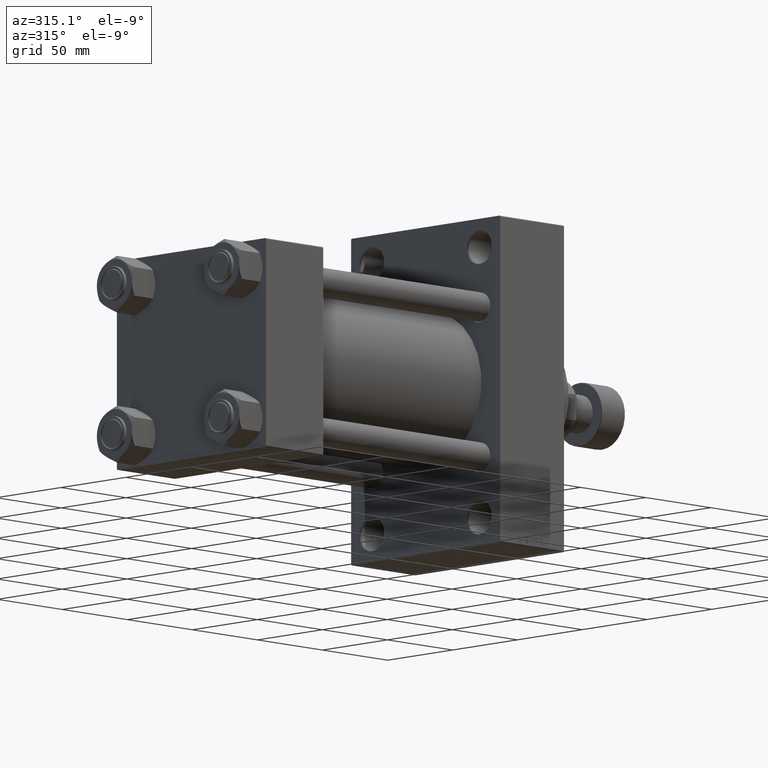
[diagram: clean part render]
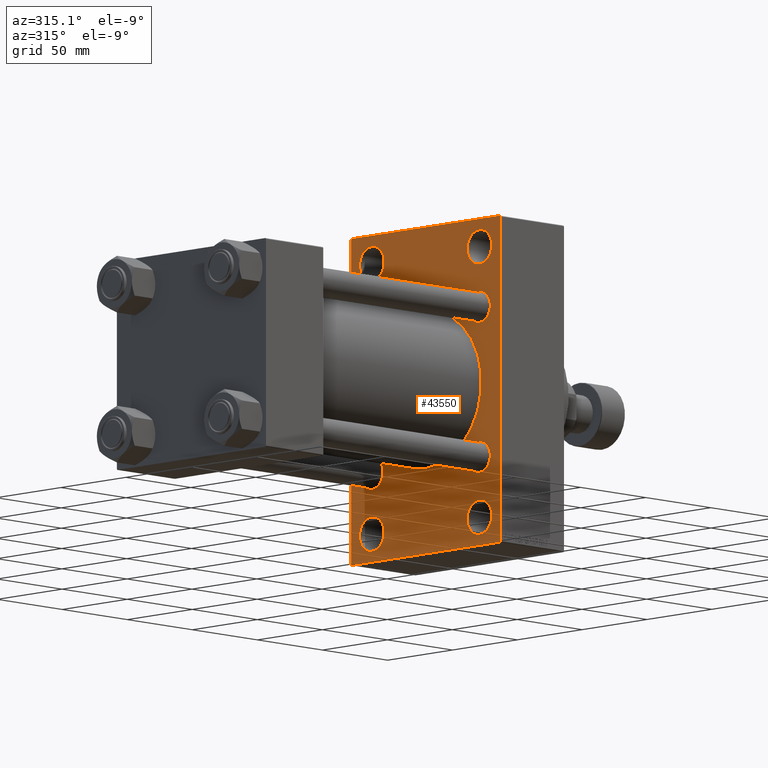
[diagram: same view with one face highlighted and labeled with its STEP entity id]
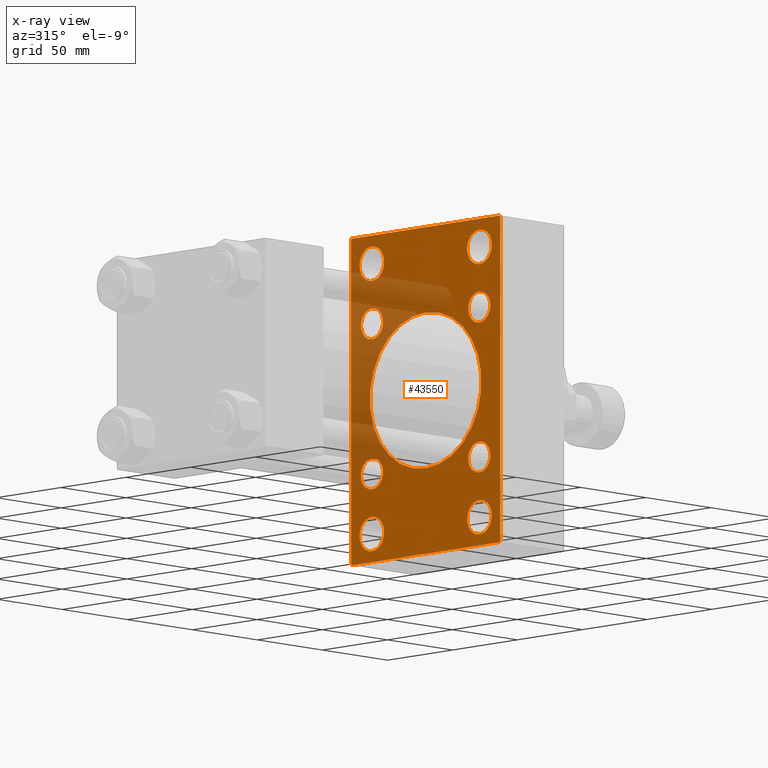
[diagram: x-ray of the same camera — body ghosted, the highlighted face saturated]
A machine part, auxiliary view. The second image highlights one B-rep face of the part: STEP entity #43550.
The next image is the same camera in x-ray: the body ghosted, the highlighted face saturated — about 23% of this face is hidden behind the body in this view.
In plain terms, the highlighted planar face has unit normal (-1, 0, 0).
Its self-contained STEP definition (entity closure, byte-faithful):
#210 = FACE_BOUND ( 'NONE', #36830, .T. ) ;
#462 = DIRECTION ( 'NONE',  ( 1.000000000000000000, 0.000000000000000000, 0.000000000000000000 ) ) ;
#544 = LINE ( 'NONE', #26087, #10243 ) ;
#847 = AXIS2_PLACEMENT_3D ( 'NONE', #46586, #20278, #5933 ) ;
#1003 = CARTESIAN_POINT ( 'NONE',  ( 180.0000000000000000, 41.49999999999999289, -74.49999999999998579 ) ) ;
#1065 = EDGE_CURVE ( 'NONE', #46944, #11020, #24161, .T. ) ;
#1472 = CARTESIAN_POINT ( 'NONE',  ( 180.0000000000000000, -41.34999999999998721, -41.35000000000000142 ) ) ;
#1748 = CARTESIAN_POINT ( 'NONE',  ( 180.0000000000000000, 57.50000000000000000, -90.00000000000000000 ) ) ;
#2166 = CARTESIAN_POINT ( 'NONE',  ( 180.0000000000000000, -41.50000000000000711, 74.50000000000001421 ) ) ;
#2320 = ORIENTED_EDGE ( 'NONE', *, *, #36162, .T. ) ;
#2423 = AXIS2_PLACEMENT_3D ( 'NONE', #17954, #36689, #7452 ) ;
#2856 = VERTEX_POINT ( 'NONE', #25975 ) ;
#3012 = CARTESIAN_POINT ( 'NONE',  ( 180.0000000000000000, -73.50000000000002842, -73.50000000000002842 ) ) ;
#3028 = LINE ( 'NONE', #36116, #8144 ) ;
#3331 = AXIS2_PLACEMENT_3D ( 'NONE', #33059, #14798, #44732 ) ;
#3633 = CARTESIAN_POINT ( 'NONE',  ( 180.0000000000000000, -57.50000000000000000, 90.00000000000000000 ) ) ;
#3788 = CARTESIAN_POINT ( 'NONE',  ( 180.0000000000000000, -57.50000000000000000, -89.49999999999997158 ) ) ;
#3947 = DIRECTION ( 'NONE',  ( 0.000000000000000000, 0.000000000000000000, -1.000000000000000000 ) ) ;
#4126 = CIRCLE ( 'NONE', #30517, 8.500000000000007105 ) ;
#4635 = AXIS2_PLACEMENT_3D ( 'NONE', #27214, #42076, #5085 ) ;
#4665 = CIRCLE ( 'NONE', #5425, 9.500000000000035527 ) ;
#4855 = EDGE_CURVE ( 'NONE', #9399, #16324, #35616, .T. ) ;
#4874 = AXIS2_PLACEMENT_3D ( 'NONE', #35699, #32059, #16722 ) ;
#4976 = CARTESIAN_POINT ( 'NONE',  ( 180.0000000000000000, -2.602085213965210642E-15, 0.000000000000000000 ) ) ;
#4996 = VERTEX_POINT ( 'NONE', #19261 ) ;
#5085 = DIRECTION ( 'NONE',  ( 0.000000000000000000, 0.000000000000000000, -1.000000000000000000 ) ) ;
#5123 = EDGE_CURVE ( 'NONE', #32301, #14495, #19933, .T. ) ;
#5135 = CARTESIAN_POINT ( 'NONE',  ( 180.0000000000000000, -57.00000000000000000, 90.00000000000000000 ) ) ;
#5237 = VECTOR ( 'NONE', #18458, 1000.000000000000000 ) ;
#5303 = CARTESIAN_POINT ( 'NONE',  ( 180.0000000000000000, -41.50000000000000711, -83.99999999999992895 ) ) ;
#5419 = ORIENTED_EDGE ( 'NONE', *, *, #43675, .T. ) ;
#5425 = AXIS2_PLACEMENT_3D ( 'NONE', #26958, #462, #37441 ) ;
#5492 = LINE ( 'NONE', #19845, #9828 ) ;
#5658 = DIRECTION ( 'NONE',  ( 1.000000000000000000, 0.000000000000000000, 0.000000000000000000 ) ) ;
#5894 = EDGE_CURVE ( 'NONE', #29353, #31752, #43844, .T. ) ;
#5933 = DIRECTION ( 'NONE',  ( 0.000000000000000000, 0.000000000000000000, 1.000000000000000000 ) ) ;
#6184 = EDGE_CURVE ( 'NONE', #32132, #16486, #5492, .T. ) ;
#6440 = VERTEX_POINT ( 'NONE', #42287 ) ;
#6565 = EDGE_CURVE ( 'NONE', #37768, #21373, #6750, .T. ) ;
#6750 = CIRCLE ( 'NONE', #9860, 9.499999999999953815 ) ;
#6793 = FACE_BOUND ( 'NONE', #39603, .T. ) ;
#7452 = DIRECTION ( 'NONE',  ( 0.000000000000000000, 0.000000000000000000, 1.000000000000000000 ) ) ;
#7777 = ORIENTED_EDGE ( 'NONE', *, *, #33349, .T. ) ;
#7958 = DIRECTION ( 'NONE',  ( 0.000000000000000000, 0.000000000000000000, 1.000000000000000000 ) ) ;
#8144 = VECTOR ( 'NONE', #43678, 1000.000000000000114 ) ;
#8358 = VERTEX_POINT ( 'NONE', #28926 ) ;
#8463 = EDGE_LOOP ( 'NONE', ( #24609, #5419 ) ) ;
#9035 = VERTEX_POINT ( 'NONE', #19714 ) ;
#9399 = VERTEX_POINT ( 'NONE', #46624 ) ;
#9561 = CARTESIAN_POINT ( 'NONE',  ( 180.0000000000000000, -2.602085213965210642E-15, 43.00000000000000000 ) ) ;
#9828 = VECTOR ( 'NONE', #16681, 1000.000000000000114 ) ;
#9840 = EDGE_CURVE ( 'NONE', #14495, #32301, #16847, .T. ) ;
#9860 = AXIS2_PLACEMENT_3D ( 'NONE', #21115, #14286, #29142 ) ;
#10067 = CIRCLE ( 'NONE', #29479, 9.499999999999953815 ) ;
#10195 = CIRCLE ( 'NONE', #15600, 43.00000000000000000 ) ;
#10243 = VECTOR ( 'NONE', #3947, 1000.000000000000000 ) ;
#11020 = VERTEX_POINT ( 'NONE', #24534 ) ;
#11385 = EDGE_LOOP ( 'NONE', ( #38507, #25403, #30311, #14804, #34965, #25045, #40318, #23877 ) ) ;
#11574 = CARTESIAN_POINT ( 'NONE',  ( 180.0000000000000000, 41.49999999999999289, 84.00000000000004263 ) ) ;
#11778 = AXIS2_PLACEMENT_3D ( 'NONE', #45809, #5658, #13195 ) ;
#11858 = CARTESIAN_POINT ( 'NONE',  ( 180.0000000000000000, -41.50000000000000711, -74.49999999999998579 ) ) ;
#11868 = EDGE_CURVE ( 'NONE', #46740, #23664, #24689, .T. ) ;
#12036 = EDGE_CURVE ( 'NONE', #29353, #16324, #36954, .T. ) ;
#12362 = EDGE_CURVE ( 'NONE', #35775, #31752, #19838, .T. ) ;
#12441 = CARTESIAN_POINT ( 'NONE',  ( 180.0000000000000000, -41.34999999999998721, -32.84999999999999432 ) ) ;
#12657 = DIRECTION ( 'NONE',  ( 1.000000000000000000, 0.000000000000000000, 0.000000000000000000 ) ) ;
#12778 = DIRECTION ( 'NONE',  ( 0.000000000000000000, -1.000000000000000000, 0.000000000000000000 ) ) ;
#13128 = CARTESIAN_POINT ( 'NONE',  ( 180.0000000000000000, -41.50000000000000711, 84.00000000000004263 ) ) ;
#13195 = DIRECTION ( 'NONE',  ( 0.000000000000000000, 0.000000000000000000, 1.000000000000000000 ) ) ;
#13672 = CARTESIAN_POINT ( 'NONE',  ( 180.0000000000000000, -73.50000000000000000, 73.50000000000000000 ) ) ;
#13958 = AXIS2_PLACEMENT_3D ( 'NONE', #29160, #35985, #44009 ) ;
#14043 = CARTESIAN_POINT ( 'NONE',  ( 180.0000000000000000, 41.34999999999999432, -49.85000000000000853 ) ) ;
#14286 = DIRECTION ( 'NONE',  ( 1.000000000000000000, 0.000000000000000000, 0.000000000000000000 ) ) ;
#14495 = VERTEX_POINT ( 'NONE', #12441 ) ;
#14798 = DIRECTION ( 'NONE',  ( -1.000000000000000000, 0.000000000000000000, -0.000000000000000000 ) ) ;
#14804 = ORIENTED_EDGE ( 'NONE', *, *, #5894, .T. ) ;
#15036 = FACE_BOUND ( 'NONE', #21188, .T. ) ;
#15091 = EDGE_LOOP ( 'NONE', ( #44035, #2320 ) ) ;
#15251 = VERTEX_POINT ( 'NONE', #27406 ) ;
#15496 = CARTESIAN_POINT ( 'NONE',  ( 180.0000000000000000, 57.00000000000002842, 90.00000000000000000 ) ) ;
#15508 = ORIENTED_EDGE ( 'NONE', *, *, #6565, .T. ) ;
#15600 = AXIS2_PLACEMENT_3D ( 'NONE', #4976, #45623, #19093 ) ;
#15740 = CARTESIAN_POINT ( 'NONE',  ( 180.0000000000000000, -57.50000000000000000, 89.50000000000000000 ) ) ;
#15804 = ORIENTED_EDGE ( 'NONE', *, *, #40663, .T. ) ;
#15995 = EDGE_CURVE ( 'NONE', #21373, #37768, #10067, .T. ) ;
#16300 = DIRECTION ( 'NONE',  ( 0.000000000000000000, 0.000000000000000000, 1.000000000000000000 ) ) ;
#16324 = VERTEX_POINT ( 'NONE', #3788 ) ;
#16486 = VERTEX_POINT ( 'NONE', #39299 ) ;
#16583 = DIRECTION ( 'NONE',  ( 0.000000000000000000, -1.000000000000000000, 0.000000000000000000 ) ) ;
#16671 = CARTESIAN_POINT ( 'NONE',  ( 180.0000000000000000, -41.50000000000000711, 64.99999999999997158 ) ) ;
#16681 = DIRECTION ( 'NONE',  ( -0.000000000000000000, -0.7071067811865474617, -0.7071067811865474617 ) ) ;
#16722 = DIRECTION ( 'NONE',  ( 0.000000000000000000, 0.000000000000000000, 1.000000000000000000 ) ) ;
#16847 = CIRCLE ( 'NONE', #29282, 8.500000000000007105 ) ;
#16900 = ORIENTED_EDGE ( 'NONE', *, *, #33196, .T. ) ;
#17064 = DIRECTION ( 'NONE',  ( 1.000000000000000000, 0.000000000000000000, 0.000000000000000000 ) ) ;
#17836 = DIRECTION ( 'NONE',  ( 0.000000000000000000, -0.7071067811865474617, 0.7071067811865474617 ) ) ;
#17954 = CARTESIAN_POINT ( 'NONE',  ( 180.0000000000000000, 41.49999999999999289, -74.49999999999998579 ) ) ;
#18073 = ORIENTED_EDGE ( 'NONE', *, *, #28035, .T. ) ;
#18451 = FACE_BOUND ( 'NONE', #38020, .T. ) ;
#18458 = DIRECTION ( 'NONE',  ( 0.000000000000000000, 0.000000000000000000, -1.000000000000000000 ) ) ;
#18685 = FACE_BOUND ( 'NONE', #23828, .T. ) ;
#18717 = CARTESIAN_POINT ( 'NONE',  ( 180.0000000000000000, 57.50000000000000000, -89.49999999999994316 ) ) ;
#19093 = DIRECTION ( 'NONE',  ( 0.000000000000000000, 0.000000000000000000, -1.000000000000000000 ) ) ;
#19261 = CARTESIAN_POINT ( 'NONE',  ( 180.0000000000000000, -41.34999999999998721, 49.85000000000001563 ) ) ;
#19381 = CIRCLE ( 'NONE', #4635, 43.00000000000000000 ) ;
#19529 = ORIENTED_EDGE ( 'NONE', *, *, #39367, .T. ) ;
#19714 = CARTESIAN_POINT ( 'NONE',  ( 180.0000000000000000, 41.49999999999999289, -65.00000000000002842 ) ) ;
#19838 = LINE ( 'NONE', #27126, #20805 ) ;
#19845 = CARTESIAN_POINT ( 'NONE',  ( 180.0000000000000000, 73.50000000000000000, -73.50000000000000000 ) ) ;
#19933 = CIRCLE ( 'NONE', #21481, 8.500000000000007105 ) ;
#20278 = DIRECTION ( 'NONE',  ( 1.000000000000000000, 0.000000000000000000, 0.000000000000000000 ) ) ;
#20317 = VERTEX_POINT ( 'NONE', #11574 ) ;
#20805 = VECTOR ( 'NONE', #12778, 1000.000000000000000 ) ;
#20890 = DIRECTION ( 'NONE',  ( 1.000000000000000000, 0.000000000000000000, 0.000000000000000000 ) ) ;
#21007 = CARTESIAN_POINT ( 'NONE',  ( 180.0000000000000000, 41.34999999999999432, -41.34999999999999432 ) ) ;
#21115 = CARTESIAN_POINT ( 'NONE',  ( 180.0000000000000000, -41.50000000000000711, -74.49999999999998579 ) ) ;
#21181 = DIRECTION ( 'NONE',  ( 1.000000000000000000, 0.000000000000000000, 0.000000000000000000 ) ) ;
#21188 = EDGE_LOOP ( 'NONE', ( #28307, #45794 ) ) ;
#21373 = VERTEX_POINT ( 'NONE', #44226 ) ;
#21481 = AXIS2_PLACEMENT_3D ( 'NONE', #47502, #17064, #47026 ) ;
#21878 = PLANE ( 'NONE',  #3331 ) ;
#22693 = ORIENTED_EDGE ( 'NONE', *, *, #15995, .T. ) ;
#23373 = CIRCLE ( 'NONE', #2423, 9.499999999999953815 ) ;
#23664 = VERTEX_POINT ( 'NONE', #41466 ) ;
#23774 = VERTEX_POINT ( 'NONE', #9561 ) ;
#23828 = EDGE_LOOP ( 'NONE', ( #31233, #33239 ) ) ;
#23877 = ORIENTED_EDGE ( 'NONE', *, *, #6184, .T. ) ;
#24161 = CIRCLE ( 'NONE', #35854, 8.500000000000007105 ) ;
#24304 = AXIS2_PLACEMENT_3D ( 'NONE', #1003, #34804, #37975 ) ;
#24339 = DIRECTION ( 'NONE',  ( 0.000000000000000000, 0.000000000000000000, 1.000000000000000000 ) ) ;
#24534 = CARTESIAN_POINT ( 'NONE',  ( 180.0000000000000000, 41.34999999999999432, -32.84999999999998721 ) ) ;
#24609 = ORIENTED_EDGE ( 'NONE', *, *, #37630, .T. ) ;
#24689 = CIRCLE ( 'NONE', #40237, 8.500000000000007105 ) ;
#24850 = EDGE_CURVE ( 'NONE', #35955, #32132, #544, .T. ) ;
#25045 = ORIENTED_EDGE ( 'NONE', *, *, #29839, .T. ) ;
#25403 = ORIENTED_EDGE ( 'NONE', *, *, #4855, .T. ) ;
#25518 = FACE_BOUND ( 'NONE', #8463, .T. ) ;
#25814 = CARTESIAN_POINT ( 'NONE',  ( 180.0000000000000000, 41.34999999999999432, 49.85000000000000853 ) ) ;
#25975 = CARTESIAN_POINT ( 'NONE',  ( 180.0000000000000000, 41.49999999999999289, 64.99999999999997158 ) ) ;
#26087 = CARTESIAN_POINT ( 'NONE',  ( 180.0000000000000000, 57.50000000000000000, 90.00000000000000000 ) ) ;
#26226 = FACE_BOUND ( 'NONE', #27266, .T. ) ;
#26911 = VECTOR ( 'NONE', #47512, 1000.000000000000114 ) ;
#26958 = CARTESIAN_POINT ( 'NONE',  ( 180.0000000000000000, 41.49999999999999289, 74.50000000000001421 ) ) ;
#27126 = CARTESIAN_POINT ( 'NONE',  ( 180.0000000000000000, 57.50000000000000000, 90.00000000000000000 ) ) ;
#27214 = CARTESIAN_POINT ( 'NONE',  ( 180.0000000000000000, -2.602085213965210642E-15, 0.000000000000000000 ) ) ;
#27264 = CIRCLE ( 'NONE', #847, 9.500000000000035527 ) ;
#27266 = EDGE_LOOP ( 'NONE', ( #7777, #42934 ) ) ;
#27297 = AXIS2_PLACEMENT_3D ( 'NONE', #39421, #36476, #40137 ) ;
#27382 = VERTEX_POINT ( 'NONE', #16671 ) ;
#27406 = CARTESIAN_POINT ( 'NONE',  ( 180.0000000000000000, 41.49999999999999289, -83.99999999999992895 ) ) ;
#27526 = LINE ( 'NONE', #1748, #36533 ) ;
#28022 = EDGE_CURVE ( 'NONE', #15251, #9035, #46098, .T. ) ;
#28035 = EDGE_CURVE ( 'NONE', #6440, #4996, #4126, .T. ) ;
#28307 = ORIENTED_EDGE ( 'NONE', *, *, #11868, .T. ) ;
#28926 = CARTESIAN_POINT ( 'NONE',  ( 180.0000000000000000, 2.663896022368408223E-15, -43.00000000000000000 ) ) ;
#29142 = DIRECTION ( 'NONE',  ( 0.000000000000000000, 0.000000000000000000, 1.000000000000000000 ) ) ;
#29160 = CARTESIAN_POINT ( 'NONE',  ( 180.0000000000000000, 41.34999999999999432, -41.34999999999999432 ) ) ;
#29282 = AXIS2_PLACEMENT_3D ( 'NONE', #1472, #12657, #16300 ) ;
#29353 = VERTEX_POINT ( 'NONE', #15740 ) ;
#29479 = AXIS2_PLACEMENT_3D ( 'NONE', #11858, #29877, #7958 ) ;
#29839 = EDGE_CURVE ( 'NONE', #35775, #35955, #3028, .T. ) ;
#29877 = DIRECTION ( 'NONE',  ( 1.000000000000000000, 0.000000000000000000, 0.000000000000000000 ) ) ;
#29888 = FACE_BOUND ( 'NONE', #15091, .T. ) ;
#30311 = ORIENTED_EDGE ( 'NONE', *, *, #12036, .F. ) ;
#30517 = AXIS2_PLACEMENT_3D ( 'NONE', #35539, #21181, #24339 ) ;
#31233 = ORIENTED_EDGE ( 'NONE', *, *, #38748, .T. ) ;
#31473 = DIRECTION ( 'NONE',  ( 0.000000000000000000, 0.000000000000000000, 1.000000000000000000 ) ) ;
#31649 = EDGE_LOOP ( 'NONE', ( #38468, #32381 ) ) ;
#31752 = VERTEX_POINT ( 'NONE', #5135 ) ;
#32059 = DIRECTION ( 'NONE',  ( 1.000000000000000000, 0.000000000000000000, 0.000000000000000000 ) ) ;
#32124 = CARTESIAN_POINT ( 'NONE',  ( 180.0000000000000000, 41.34999999999999432, 41.34999999999999432 ) ) ;
#32132 = VERTEX_POINT ( 'NONE', #18717 ) ;
#32301 = VERTEX_POINT ( 'NONE', #47439 ) ;
#32381 = ORIENTED_EDGE ( 'NONE', *, *, #5123, .T. ) ;
#32836 = FACE_BOUND ( 'NONE', #31649, .T. ) ;
#32845 = CIRCLE ( 'NONE', #4874, 9.500000000000035527 ) ;
#33059 = CARTESIAN_POINT ( 'NONE',  ( 180.0000000000000000, 0.000000000000000000, 0.000000000000000000 ) ) ;
#33093 = EDGE_CURVE ( 'NONE', #23774, #8358, #19381, .T. ) ;
#33196 = EDGE_CURVE ( 'NONE', #40133, #27382, #47398, .T. ) ;
#33239 = ORIENTED_EDGE ( 'NONE', *, *, #28022, .T. ) ;
#33349 = EDGE_CURVE ( 'NONE', #11020, #46944, #45041, .T. ) ;
#34294 = EDGE_CURVE ( 'NONE', #16486, #9399, #27526, .T. ) ;
#34659 = VECTOR ( 'NONE', #17836, 1000.000000000000114 ) ;
#34804 = DIRECTION ( 'NONE',  ( 1.000000000000000000, 0.000000000000000000, 0.000000000000000000 ) ) ;
#34965 = ORIENTED_EDGE ( 'NONE', *, *, #12362, .F. ) ;
#35539 = CARTESIAN_POINT ( 'NONE',  ( 180.0000000000000000, -41.34999999999998721, 41.35000000000000142 ) ) ;
#35616 = LINE ( 'NONE', #3012, #34659 ) ;
#35699 = CARTESIAN_POINT ( 'NONE',  ( 180.0000000000000000, 41.49999999999999289, 74.50000000000001421 ) ) ;
#35775 = VERTEX_POINT ( 'NONE', #15496 ) ;
#35854 = AXIS2_PLACEMENT_3D ( 'NONE', #21007, #42932, #31473 ) ;
#35876 = CIRCLE ( 'NONE', #27297, 8.500000000000007105 ) ;
#35905 = CIRCLE ( 'NONE', #11778, 8.500000000000007105 ) ;
#35955 = VERTEX_POINT ( 'NONE', #37108 ) ;
#35985 = DIRECTION ( 'NONE',  ( 1.000000000000000000, 0.000000000000000000, 0.000000000000000000 ) ) ;
#36116 = CARTESIAN_POINT ( 'NONE',  ( 180.0000000000000000, 73.50000000000002842, 73.50000000000002842 ) ) ;
#36162 = EDGE_CURVE ( 'NONE', #8358, #23774, #10195, .T. ) ;
#36476 = DIRECTION ( 'NONE',  ( 1.000000000000000000, 0.000000000000000000, 0.000000000000000000 ) ) ;
#36496 = AXIS2_PLACEMENT_3D ( 'NONE', #2166, #20890, #39643 ) ;
#36533 = VECTOR ( 'NONE', #16583, 1000.000000000000000 ) ;
#36689 = DIRECTION ( 'NONE',  ( 1.000000000000000000, 0.000000000000000000, 0.000000000000000000 ) ) ;
#36830 = EDGE_LOOP ( 'NONE', ( #15804, #18073 ) ) ;
#36954 = LINE ( 'NONE', #3633, #5237 ) ;
#37108 = CARTESIAN_POINT ( 'NONE',  ( 180.0000000000000000, 57.50000000000000000, 89.50000000000002842 ) ) ;
#37441 = DIRECTION ( 'NONE',  ( 0.000000000000000000, 0.000000000000000000, 1.000000000000000000 ) ) ;
#37630 = EDGE_CURVE ( 'NONE', #20317, #2856, #4665, .T. ) ;
#37768 = VERTEX_POINT ( 'NONE', #5303 ) ;
#37975 = DIRECTION ( 'NONE',  ( 0.000000000000000000, 0.000000000000000000, 1.000000000000000000 ) ) ;
#38020 = EDGE_LOOP ( 'NONE', ( #22693, #15508 ) ) ;
#38468 = ORIENTED_EDGE ( 'NONE', *, *, #9840, .T. ) ;
#38507 = ORIENTED_EDGE ( 'NONE', *, *, #34294, .T. ) ;
#38748 = EDGE_CURVE ( 'NONE', #9035, #15251, #23373, .T. ) ;
#39299 = CARTESIAN_POINT ( 'NONE',  ( 180.0000000000000000, 57.00000000000000000, -90.00000000000000000 ) ) ;
#39367 = EDGE_CURVE ( 'NONE', #27382, #40133, #27264, .T. ) ;
#39421 = CARTESIAN_POINT ( 'NONE',  ( 180.0000000000000000, 41.34999999999999432, 41.34999999999999432 ) ) ;
#39603 = EDGE_LOOP ( 'NONE', ( #16900, #19529 ) ) ;
#39643 = DIRECTION ( 'NONE',  ( 0.000000000000000000, 0.000000000000000000, 1.000000000000000000 ) ) ;
#40080 = EDGE_CURVE ( 'NONE', #23664, #46740, #35876, .T. ) ;
#40133 = VERTEX_POINT ( 'NONE', #13128 ) ;
#40137 = DIRECTION ( 'NONE',  ( 0.000000000000000000, 0.000000000000000000, 1.000000000000000000 ) ) ;
#40143 = FACE_OUTER_BOUND ( 'NONE', #11385, .T. ) ;
#40237 = AXIS2_PLACEMENT_3D ( 'NONE', #32124, #46997, #46752 ) ;
#40318 = ORIENTED_EDGE ( 'NONE', *, *, #24850, .T. ) ;
#40663 = EDGE_CURVE ( 'NONE', #4996, #6440, #35905, .T. ) ;
#41466 = CARTESIAN_POINT ( 'NONE',  ( 180.0000000000000000, 41.34999999999999432, 32.84999999999998721 ) ) ;
#42076 = DIRECTION ( 'NONE',  ( 1.000000000000000000, 0.000000000000000000, 0.000000000000000000 ) ) ;
#42287 = CARTESIAN_POINT ( 'NONE',  ( 180.0000000000000000, -41.34999999999998721, 32.84999999999999432 ) ) ;
#42932 = DIRECTION ( 'NONE',  ( 1.000000000000000000, 0.000000000000000000, 0.000000000000000000 ) ) ;
#42934 = ORIENTED_EDGE ( 'NONE', *, *, #1065, .T. ) ;
#43550 = ADVANCED_FACE ( 'NONE', ( #6793, #18451, #18685, #25518, #210, #15036, #26226, #32836, #29888, #40143 ), #21878, .T. ) ;
#43675 = EDGE_CURVE ( 'NONE', #2856, #20317, #32845, .T. ) ;
#43678 = DIRECTION ( 'NONE',  ( 0.000000000000000000, 0.7071067811865474617, -0.7071067811865474617 ) ) ;
#43844 = LINE ( 'NONE', #13672, #26911 ) ;
#44009 = DIRECTION ( 'NONE',  ( 0.000000000000000000, 0.000000000000000000, 1.000000000000000000 ) ) ;
#44035 = ORIENTED_EDGE ( 'NONE', *, *, #33093, .T. ) ;
#44226 = CARTESIAN_POINT ( 'NONE',  ( 180.0000000000000000, -41.50000000000000711, -65.00000000000002842 ) ) ;
#44732 = DIRECTION ( 'NONE',  ( -0.000000000000000000, 0.000000000000000000, 1.000000000000000000 ) ) ;
#45041 = CIRCLE ( 'NONE', #13958, 8.500000000000007105 ) ;
#45623 = DIRECTION ( 'NONE',  ( 1.000000000000000000, 0.000000000000000000, 0.000000000000000000 ) ) ;
#45794 = ORIENTED_EDGE ( 'NONE', *, *, #40080, .T. ) ;
#45809 = CARTESIAN_POINT ( 'NONE',  ( 180.0000000000000000, -41.34999999999998721, 41.35000000000000142 ) ) ;
#46098 = CIRCLE ( 'NONE', #24304, 9.499999999999953815 ) ;
#46586 = CARTESIAN_POINT ( 'NONE',  ( 180.0000000000000000, -41.50000000000000711, 74.50000000000001421 ) ) ;
#46624 = CARTESIAN_POINT ( 'NONE',  ( 180.0000000000000000, -57.00000000000002842, -90.00000000000000000 ) ) ;
#46740 = VERTEX_POINT ( 'NONE', #25814 ) ;
#46752 = DIRECTION ( 'NONE',  ( 0.000000000000000000, 0.000000000000000000, 1.000000000000000000 ) ) ;
#46944 = VERTEX_POINT ( 'NONE', #14043 ) ;
#46997 = DIRECTION ( 'NONE',  ( 1.000000000000000000, 0.000000000000000000, 0.000000000000000000 ) ) ;
#47026 = DIRECTION ( 'NONE',  ( 0.000000000000000000, 0.000000000000000000, 1.000000000000000000 ) ) ;
#47398 = CIRCLE ( 'NONE', #36496, 9.500000000000035527 ) ;
#47439 = CARTESIAN_POINT ( 'NONE',  ( 180.0000000000000000, -41.34999999999998721, -49.85000000000001563 ) ) ;
#47502 = CARTESIAN_POINT ( 'NONE',  ( 180.0000000000000000, -41.34999999999998721, -41.35000000000000142 ) ) ;
#47512 = DIRECTION ( 'NONE',  ( -0.000000000000000000, 0.7071067811865474617, 0.7071067811865474617 ) ) ;